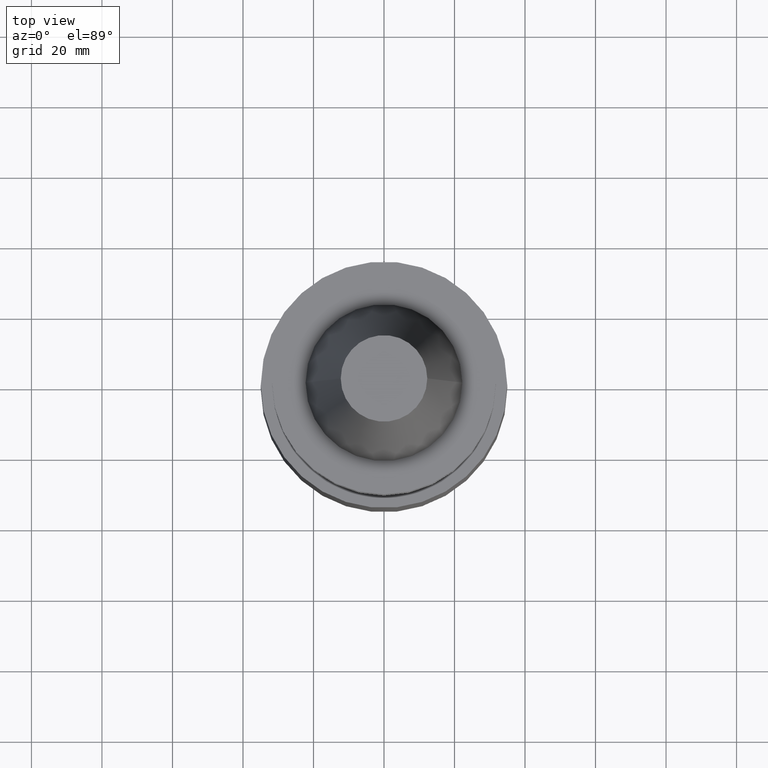
[diagram: clean part render]
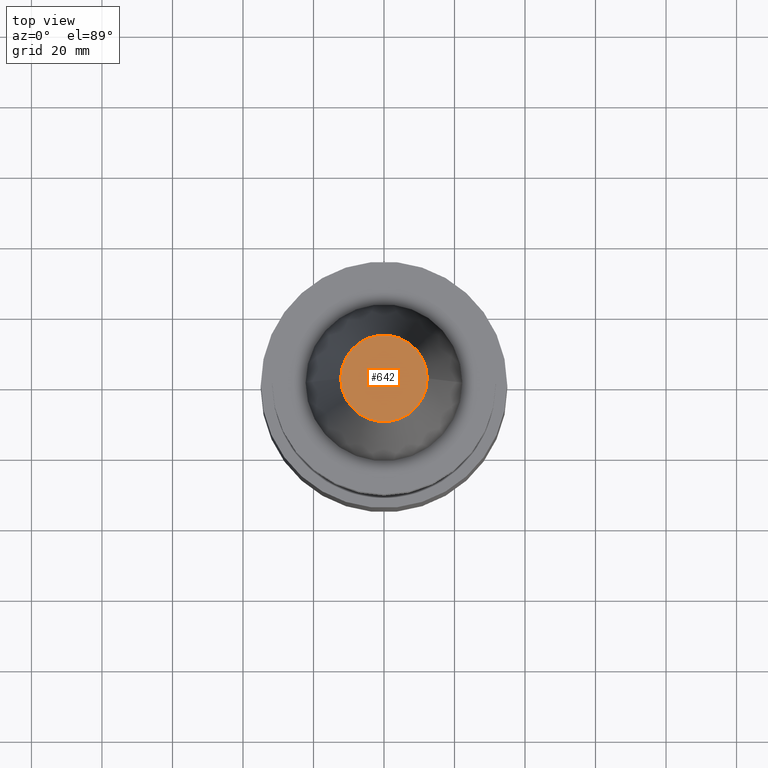
[diagram: same view with one face highlighted and labeled with its STEP entity id]
A machine part, top view. The second image highlights one B-rep face of the part: STEP entity #642.
In plain terms, the highlighted planar face has unit normal (0, 0, -1).
Its self-contained STEP definition (entity closure, byte-faithful):
#41 = VERTEX_POINT ( 'NONE', #554 ) ;
#60 = EDGE_CURVE ( 'NONE', #41, #95, #396, .T. ) ;
#95 = VERTEX_POINT ( 'NONE', #734 ) ;
#116 = CIRCLE ( 'NONE', #383, 12.27178102086201150 ) ;
#157 = DIRECTION ( 'NONE',  ( 1.000000000000000000, 0.000000000000000000, 0.000000000000000000 ) ) ;
#179 = DIRECTION ( 'NONE',  ( 0.000000000000000000, 0.000000000000000000, -1.000000000000000000 ) ) ;
#188 = DIRECTION ( 'NONE',  ( -1.000000000000000000, 0.000000000000000000, -0.000000000000000000 ) ) ;
#231 = ORIENTED_EDGE ( 'NONE', *, *, #60, .T. ) ;
#299 = CARTESIAN_POINT ( 'NONE',  ( 0.000000000000000000, 0.000000000000000000, 68.25000000000000000 ) ) ;
#311 = PLANE ( 'NONE',  #818 ) ;
#383 = AXIS2_PLACEMENT_3D ( 'NONE', #299, #821, #157 ) ;
#396 = CIRCLE ( 'NONE', #758, 12.27178102086201150 ) ;
#411 = DIRECTION ( 'NONE',  ( 1.000000000000000000, 0.000000000000000000, 0.000000000000000000 ) ) ;
#420 = ORIENTED_EDGE ( 'NONE', *, *, #518, .T. ) ;
#503 = DIRECTION ( 'NONE',  ( -0.000000000000000000, -0.000000000000000000, 1.000000000000000000 ) ) ;
#518 = EDGE_CURVE ( 'NONE', #95, #41, #116, .T. ) ;
#554 = CARTESIAN_POINT ( 'NONE',  ( 12.27178102086201150, 2.112318622904291439E-15, 68.25000000000000000 ) ) ;
#642 = ADVANCED_FACE ( 'NONE', ( #651 ), #311, .F. ) ;
#645 = CARTESIAN_POINT ( 'NONE',  ( 0.000000000000000000, 12.27178102086201150, 68.25000000000000000 ) ) ;
#651 = FACE_OUTER_BOUND ( 'NONE', #774, .T. ) ;
#734 = CARTESIAN_POINT ( 'NONE',  ( -12.27178102086201150, 0.000000000000000000, 68.25000000000000000 ) ) ;
#758 = AXIS2_PLACEMENT_3D ( 'NONE', #771, #503, #411 ) ;
#771 = CARTESIAN_POINT ( 'NONE',  ( 0.000000000000000000, 0.000000000000000000, 68.25000000000000000 ) ) ;
#774 = EDGE_LOOP ( 'NONE', ( #420, #231 ) ) ;
#818 = AXIS2_PLACEMENT_3D ( 'NONE', #645, #179, #188 ) ;
#821 = DIRECTION ( 'NONE',  ( -0.000000000000000000, -0.000000000000000000, 1.000000000000000000 ) ) ;